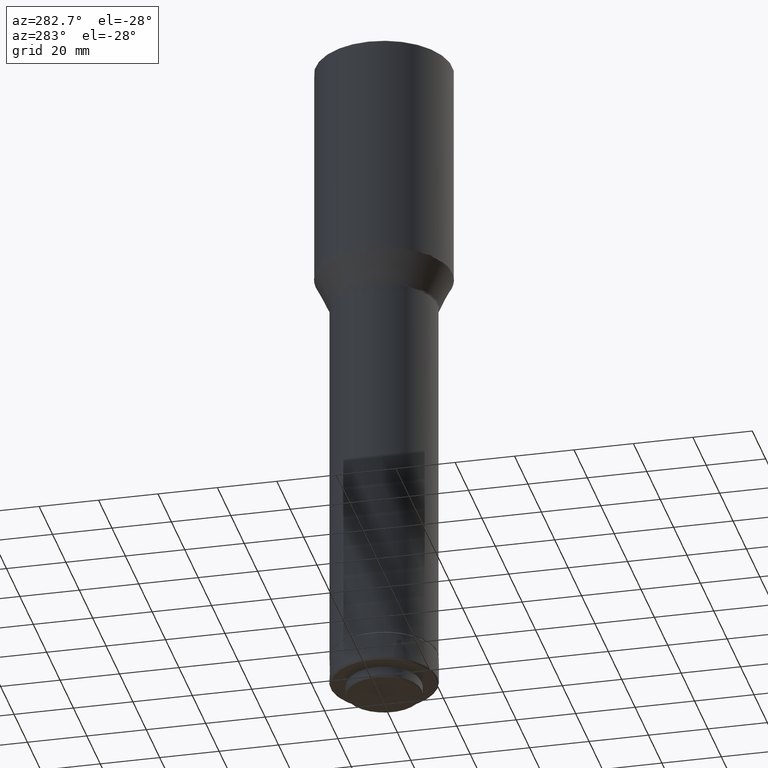
[diagram: clean part render]
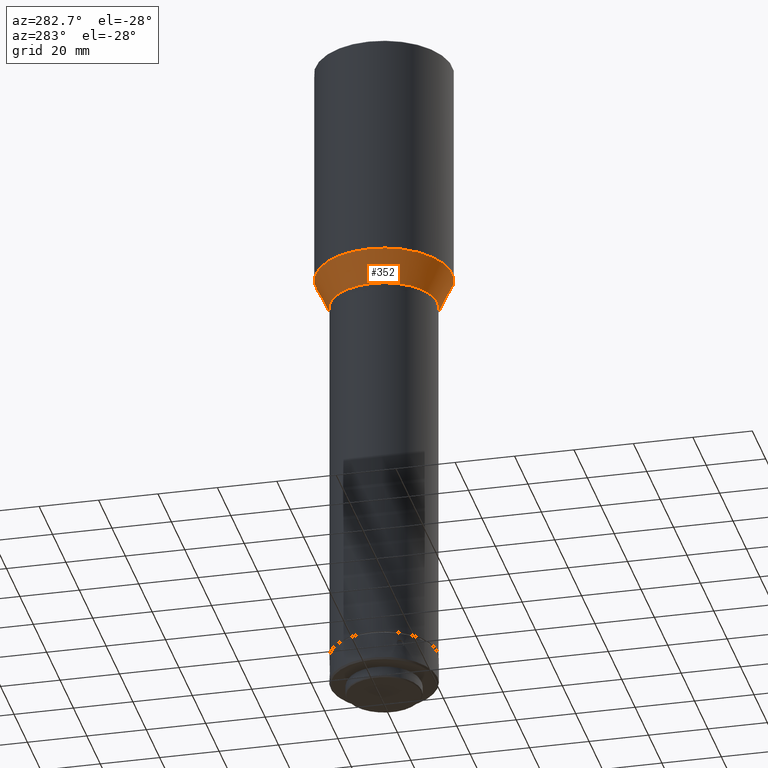
[diagram: same view with one face highlighted and labeled with its STEP entity id]
A machine part, auxiliary view. The second image highlights one B-rep face of the part: STEP entity #352.
In plain terms, the highlighted conical surface has half-angle 25 deg.
Its self-contained STEP definition (entity closure, byte-faithful):
#98 = DIRECTION ( 'NONE',  ( 1.000000000000000000, 5.551115123125783935E-17, 0.000000000000000000 ) ) ;
#109 = EDGE_CURVE ( 'NONE', #414, #414, #641, .T. ) ;
#112 = DIRECTION ( 'NONE',  ( 1.000000000000000000, 0.000000000000000000, 0.000000000000000000 ) ) ;
#140 = CIRCLE ( 'NONE', #244, 18.09369221296335795 ) ;
#172 = EDGE_LOOP ( 'NONE', ( #595 ) ) ;
#229 = FACE_BOUND ( 'NONE', #172, .T. ) ;
#244 = AXIS2_PLACEMENT_3D ( 'NONE', #293, #305, #828 ) ;
#272 = VERTEX_POINT ( 'NONE', #555 ) ;
#279 = CARTESIAN_POINT ( 'NONE',  ( 22.90630778703667048, 2.626900937437365605E-15, -533.2009235990977913 ) ) ;
#289 = CARTESIAN_POINT ( 'NONE',  ( -7.523678467577149378E-32, 1.355345421721433986E-15, -533.2009235990977913 ) ) ;
#293 = CARTESIAN_POINT ( 'NONE',  ( -7.523678467577149378E-32, 1.355345421721433986E-15, -543.5216110034501753 ) ) ;
#305 = DIRECTION ( 'NONE',  ( 0.000000000000000000, 0.000000000000000000, 1.000000000000000000 ) ) ;
#338 = EDGE_CURVE ( 'NONE', #272, #272, #140, .T. ) ;
#352 = ADVANCED_FACE ( 'NONE', ( #229, #501 ), #792, .T. ) ;
#414 = VERTEX_POINT ( 'NONE', #279 ) ;
#458 = AXIS2_PLACEMENT_3D ( 'NONE', #289, #490, #98 ) ;
#490 = DIRECTION ( 'NONE',  ( -0.000000000000000000, -0.000000000000000000, -1.000000000000000000 ) ) ;
#501 = FACE_OUTER_BOUND ( 'NONE', #680, .T. ) ;
#555 = CARTESIAN_POINT ( 'NONE',  ( 18.09369221296335795, 2.359747106487075248E-15, -543.5216110034501753 ) ) ;
#579 = CARTESIAN_POINT ( 'NONE',  ( 0.000000000000000000, 1.355345421721433986E-15, -533.2009235990977913 ) ) ;
#595 = ORIENTED_EDGE ( 'NONE', *, *, #338, .T. ) ;
#641 = CIRCLE ( 'NONE', #458, 22.90630778703667048 ) ;
#680 = EDGE_LOOP ( 'NONE', ( #773 ) ) ;
#757 = AXIS2_PLACEMENT_3D ( 'NONE', #579, #764, #112 ) ;
#764 = DIRECTION ( 'NONE',  ( 0.000000000000000000, 0.000000000000000000, 1.000000000000000000 ) ) ;
#773 = ORIENTED_EDGE ( 'NONE', *, *, #109, .T. ) ;
#792 = CONICAL_SURFACE ( 'NONE', #757, 22.90630778703667403, 0.4363323129985762772 ) ;
#828 = DIRECTION ( 'NONE',  ( 1.000000000000000000, 5.551115123125783935E-17, 0.000000000000000000 ) ) ;